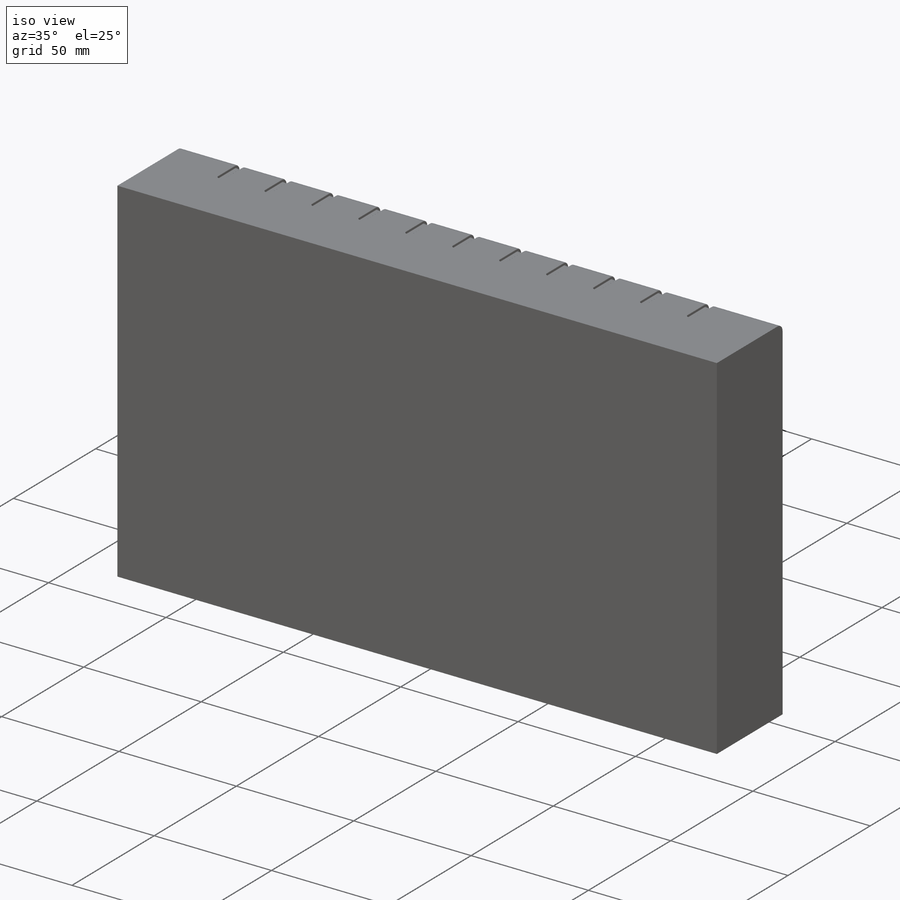
[diagram: iso view]
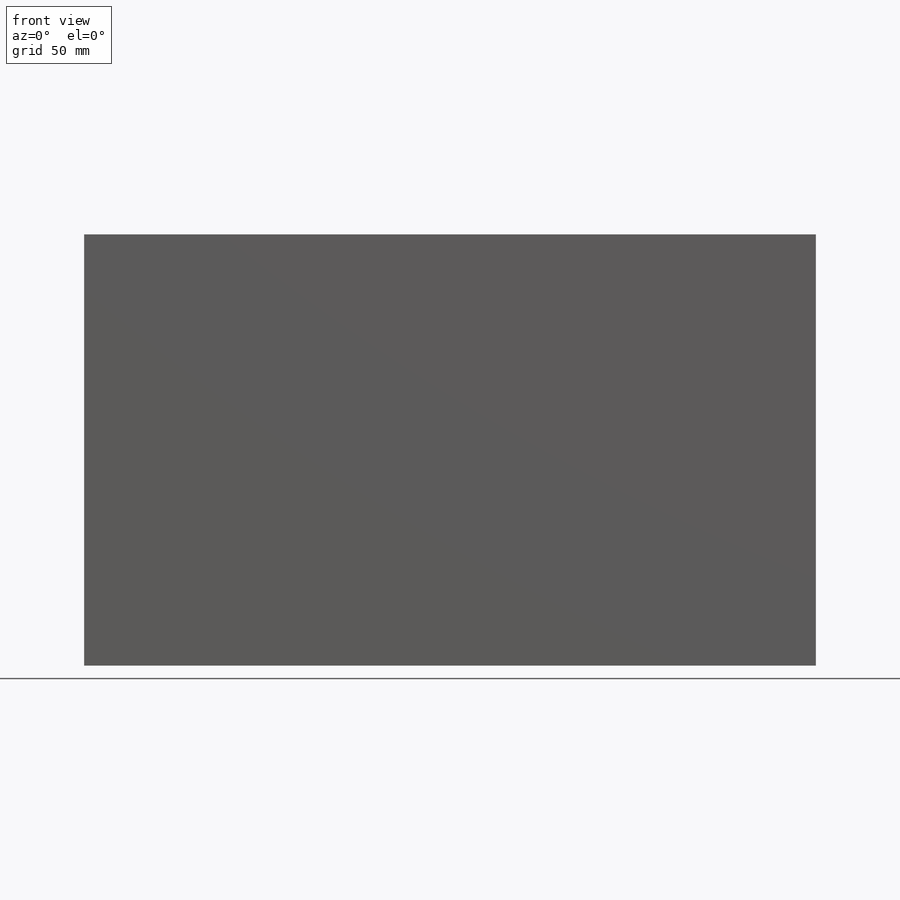
[diagram: front view]
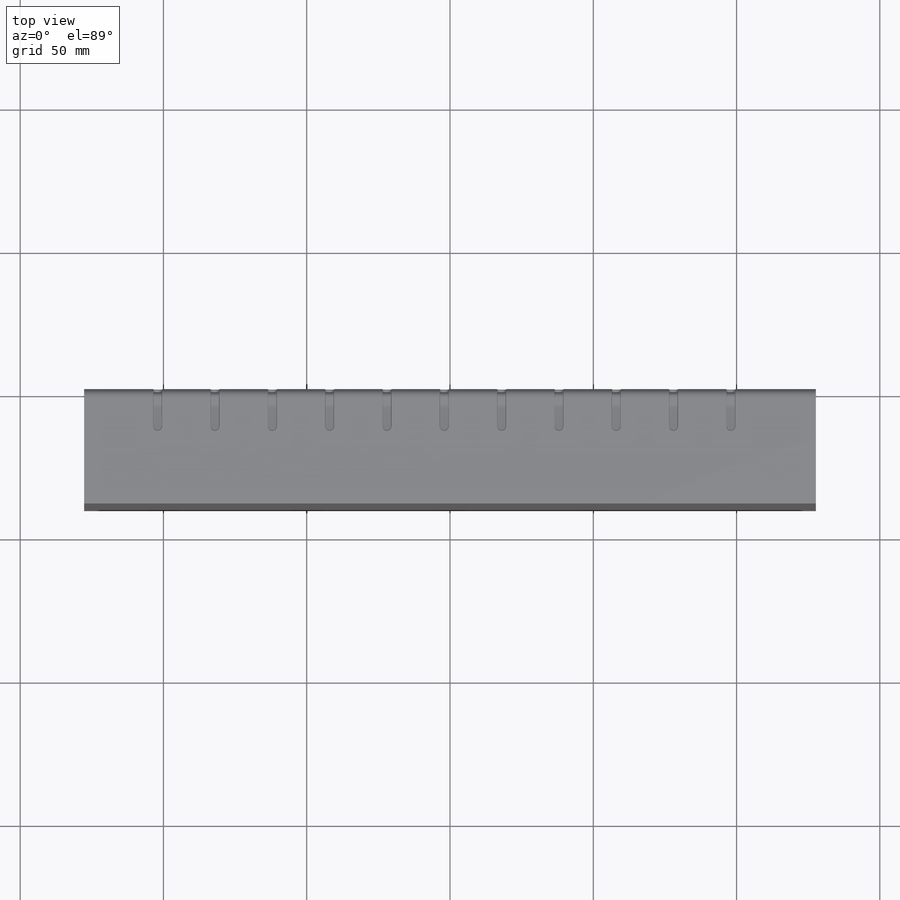
[diagram: top view]
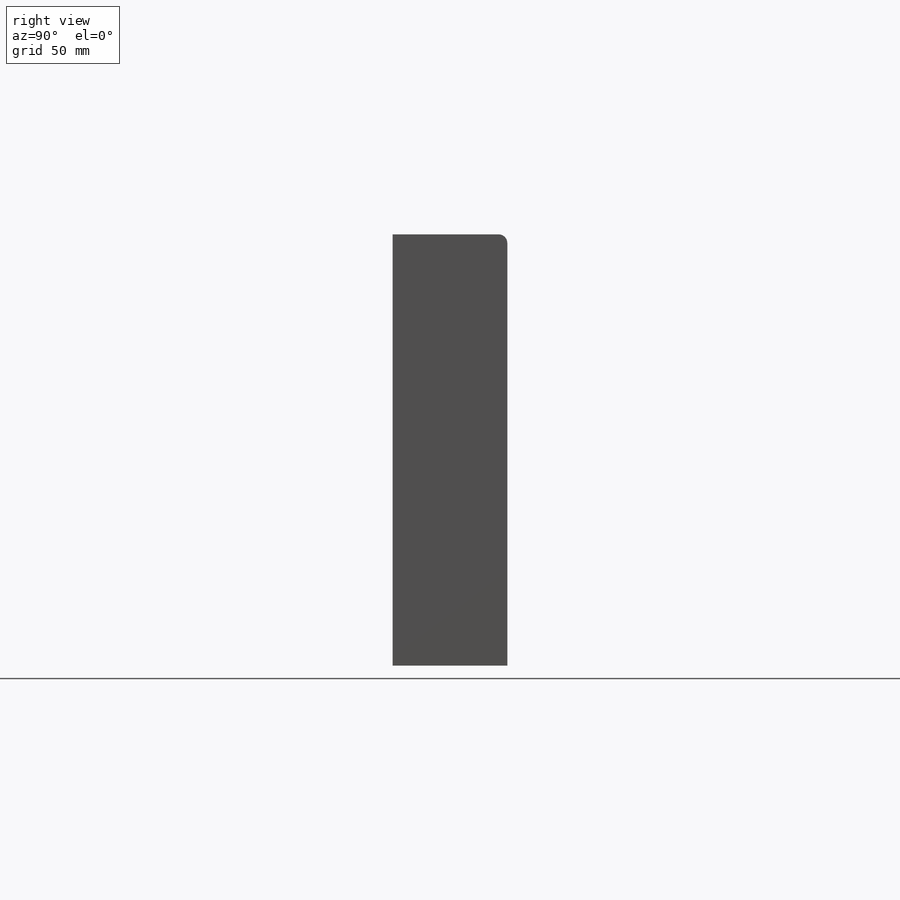
[diagram: right view]
SOLIDWORKS PART (.sldprt)
format: sldprt  version: not decoded by parser v0  size: 472,576 bytes
history: native  units: mm
features: plane x5, sketch x5, fillet x2, cut_extrude x2, material x1, extrude x1, sweep x1, pattern_linear x1 (+8 scaffold rows collapsed)
feature tree (26):
  scaffold x8  (default folders/planes/origin — collapsed)
  material  "Matériau <non spécifié>"
  plane  "Plan de face"
  plane  "Plan de dessus"
  plane  "Plan de droite"
  sketch  "Esquisse1"
  extrude  "Boss.-Extru.1"  Depth=40mm
  fillet  "Congé6"  Radius=3mm
  plane  "Plan1"  Offset=30mm
  sketch  "Esquisse2"  dims[D2=20.0mm D3=20.0mm D1=2.0mm]
  plane  "Plan2"
  sketch  "Esquisse3"  dims[D3=0.5mm D1=3.0mm D2=6.0mm]
  sweep  "Enlèvement de matière-Balayage1"
  sketch  "Esquisse4"
  cut_extrude  "Enlèv. mat.-Extru.1"  [1 undecoded]
  sketch  "Esquisse5"
  cut_extrude  "Enlèv. mat.-Extru.2"  [1 undecoded]
  fillet  "Congé7"  Radius=0.2mm
  pattern_linear  "Répétition linéaire2"  Count1=11 Count2=1 Spacing1=20mm Spacing2=10mm
decode coverage: 6 of 12 modeling features carry decoded parameters
note: 2 parameter values undecoded
note: suppression state not decoded; provenance and decode notes live in map.json
